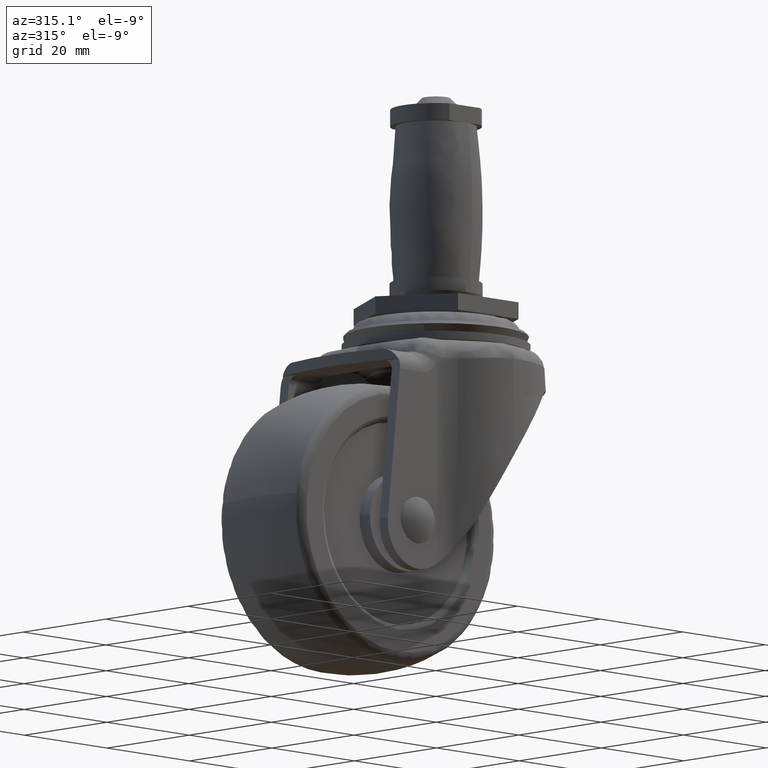
[diagram: clean part render]
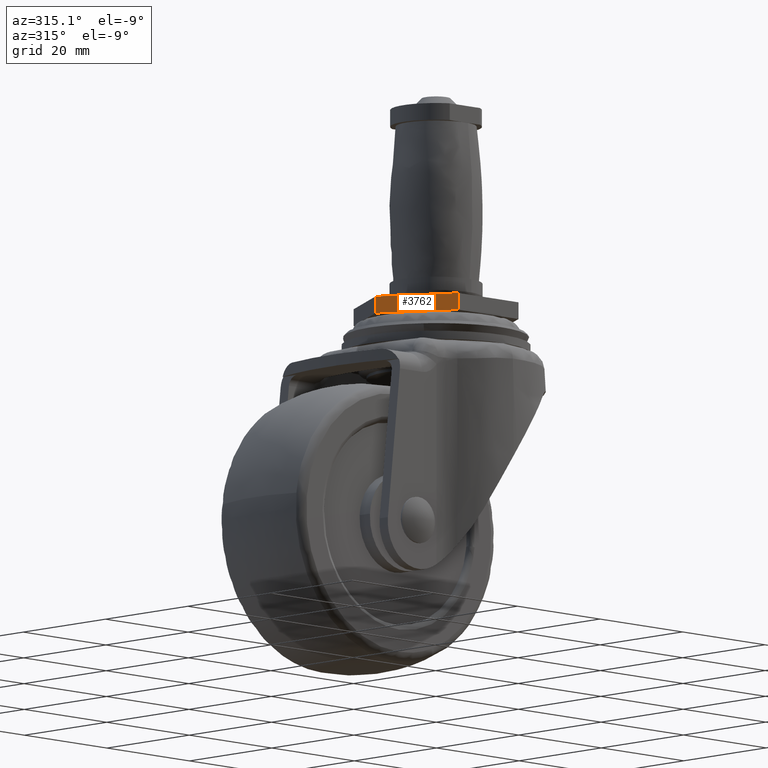
[diagram: same view with one face highlighted and labeled with its STEP entity id]
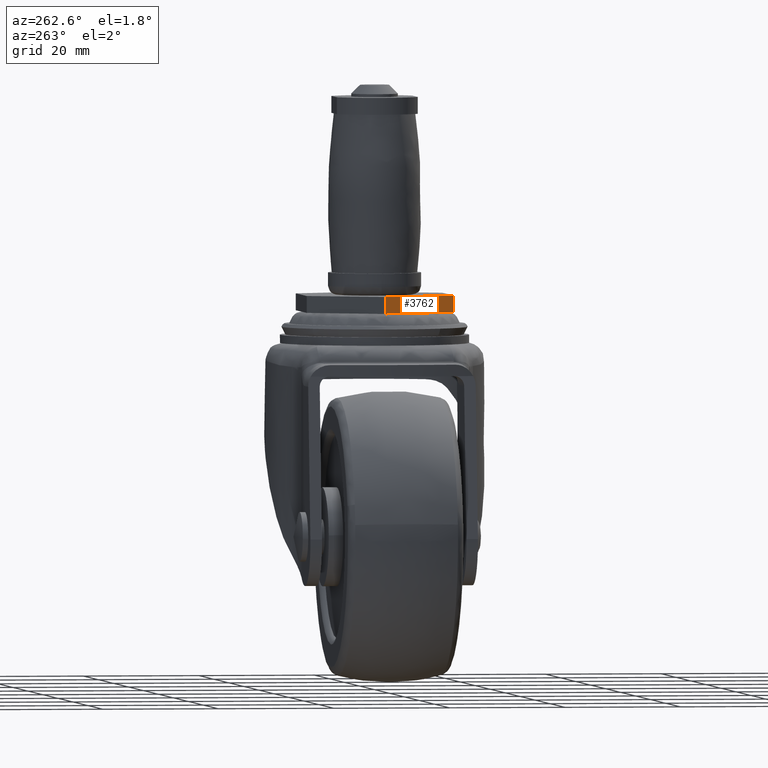
[diagram: same view with one face highlighted and labeled with its STEP entity id]
A machine part, auxiliary view. The second image highlights one B-rep face of the part: STEP entity #3762.
A second angle (auxiliary view) of the same face is appended — the face is thin or edge-on in the first view.
In plain terms, the highlighted face is a freeform B-spline surface patch.
Its self-contained STEP definition (entity closure, byte-faithful):
#3641=CARTESIAN_POINT('',(-7.330000000000000,-12.695932000000139,-2.899989000000000));
#3642=VERTEX_POINT('',#3641);
#3648=CARTESIAN_POINT('',(-14.660000000000000,0.0,-2.899989000000000));
#3649=VERTEX_POINT('',#3648);
#3650=CARTESIAN_POINT('',(-14.660000000000000,0.0,-2.899989000000000));
#3651=CARTESIAN_POINT('',(-7.330000000000000,-12.695932000000139,-2.899989000000000));
#3652=QUASI_UNIFORM_CURVE('',1,(#3650,#3651),.UNSPECIFIED.,.F.,.U.);
#3653=EDGE_CURVE('',#3649,#3642,#3652,.T.);
#3724=CARTESIAN_POINT('',(-7.330000000000000,-12.695932000000139,0.0));
#3725=VERTEX_POINT('',#3724);
#3731=CARTESIAN_POINT('',(-7.330000000000000,-12.695932000000139,-2.899989000000000));
#3732=CARTESIAN_POINT('',(-7.330000000000000,-12.695932000000139,0.0));
#3733=QUASI_UNIFORM_CURVE('',1,(#3731,#3732),.UNSPECIFIED.,.F.,.U.);
#3734=EDGE_CURVE('',#3642,#3725,#3733,.T.);
#3741=CARTESIAN_POINT('',(-15.026133485793039,0.634161778792826,-3.044843336037172));
#3742=CARTESIAN_POINT('',(-6.963866317601028,-13.330094119324389,-3.044843336037172));
#3743=CARTESIAN_POINT('',(-15.026133485793039,0.634161778792826,0.144854517532626));
#3744=CARTESIAN_POINT('',(-6.963866317601028,-13.330094119324389,0.144854517532626));
#3745=B_SPLINE_SURFACE_WITH_KNOTS('',1,1,((#3741,#3743),(#3742,#3744)),.UNSPECIFIED.,.F.,.F.,.U.,(2,2),(2,2),(0.0,16.124533936812199),(0.0,3.189697853569798),.UNSPECIFIED.);
#3746=CARTESIAN_POINT('',(-14.660000000000000,0.0,0.0));
#3747=VERTEX_POINT('',#3746);
#3748=CARTESIAN_POINT('',(-14.660000000000000,0.0,0.0));
#3749=CARTESIAN_POINT('',(-7.330000000000000,-12.695932000000139,0.0));
#3750=QUASI_UNIFORM_CURVE('',1,(#3748,#3749),.UNSPECIFIED.,.F.,.U.);
#3751=EDGE_CURVE('',#3747,#3725,#3750,.T.);
#3752=ORIENTED_EDGE('',*,*,#3751,.F.);
#3753=CARTESIAN_POINT('',(-14.660000000000000,0.0,-2.899989000000000));
#3754=CARTESIAN_POINT('',(-14.660000000000000,0.0,0.0));
#3755=QUASI_UNIFORM_CURVE('',1,(#3753,#3754),.UNSPECIFIED.,.F.,.U.);
#3756=EDGE_CURVE('',#3649,#3747,#3755,.T.);
#3757=ORIENTED_EDGE('',*,*,#3756,.F.);
#3758=ORIENTED_EDGE('',*,*,#3653,.T.);
#3759=ORIENTED_EDGE('',*,*,#3734,.T.);
#3760=EDGE_LOOP('',(#3752,#3757,#3758,#3759));
#3761=FACE_OUTER_BOUND('',#3760,.T.);
#3762=ADVANCED_FACE('',(#3761),#3745,.T.);